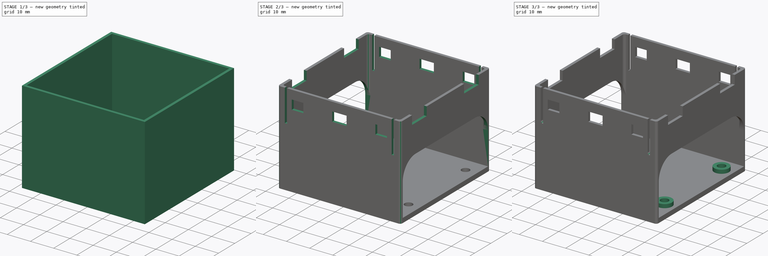
[diagram: build sequence overview — one tinted view per stage of 3, left to right]
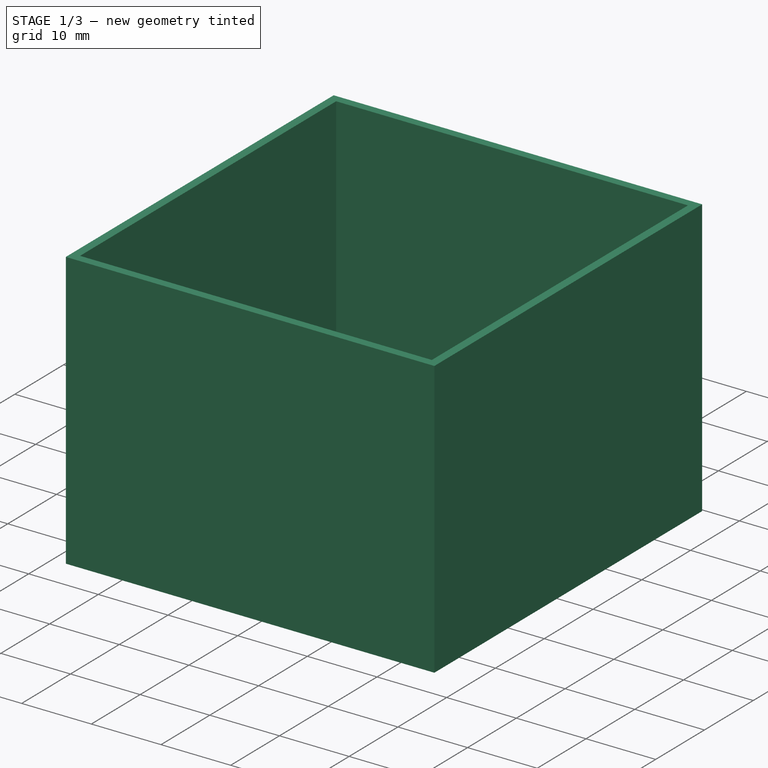
[diagram: stage 1 of 3 — iso view after this stage's code; geometry added in this stage tinted green]
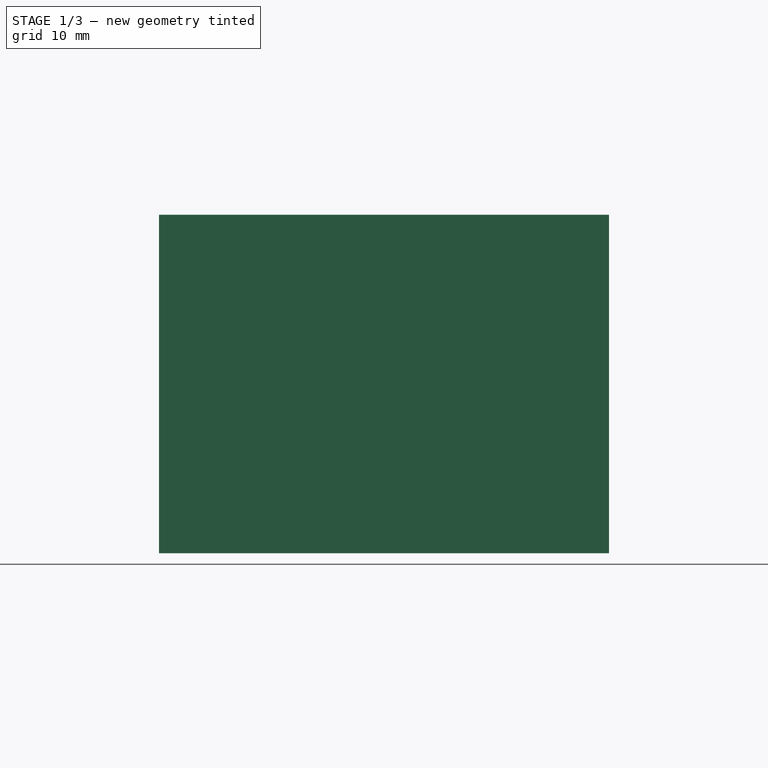
[diagram: stage 1 of 3 — front view after this stage's code; geometry added in this stage tinted green]
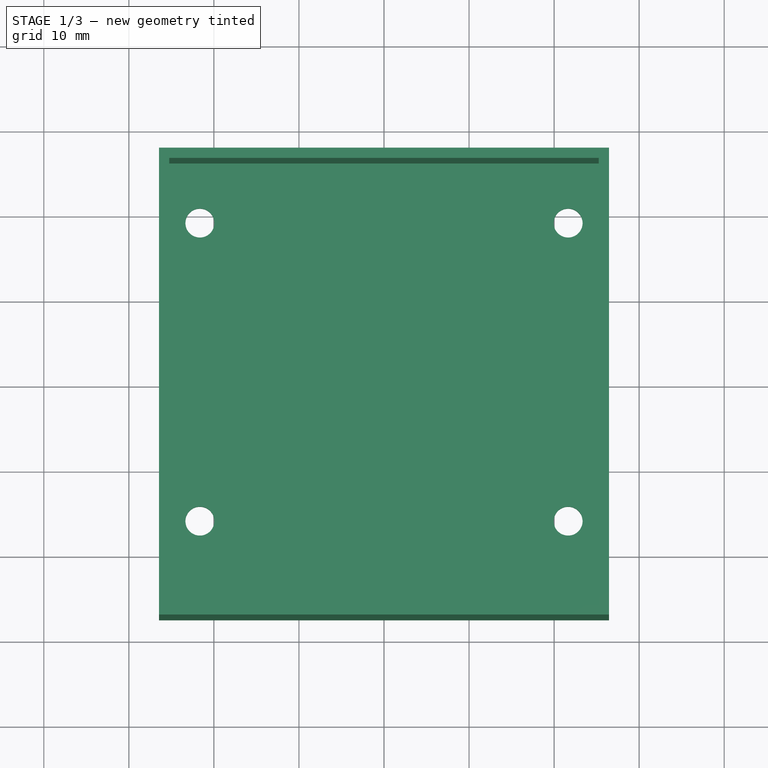
[diagram: stage 1 of 3 — top view after this stage's code; geometry added in this stage tinted green]
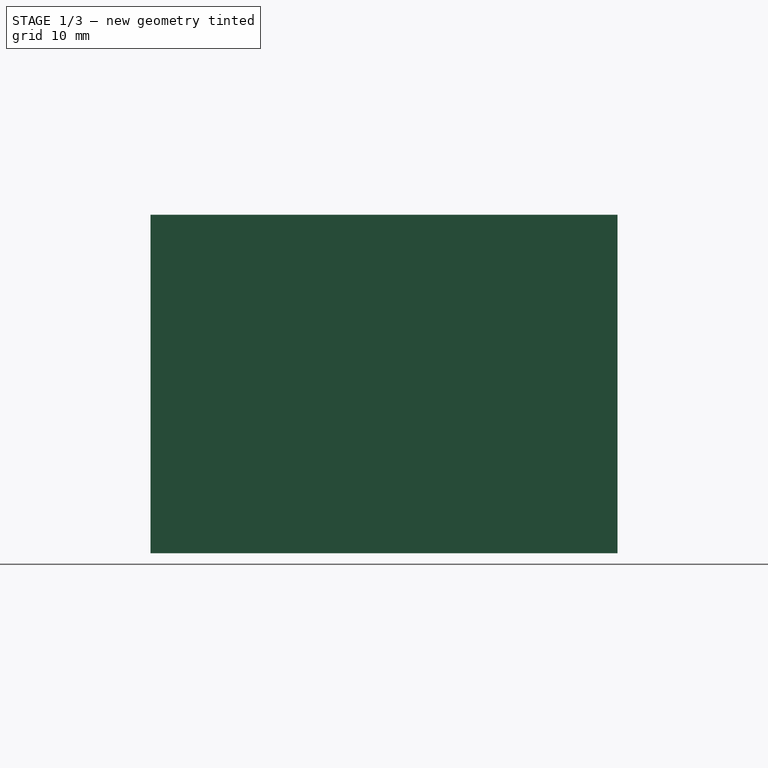
[diagram: stage 1 of 3 — right view after this stage's code; geometry added in this stage tinted green]
FCSTD DOCUMENT  (FreeCAD 0.19R24276 (Git))
Label: Powerstrip
License: All rights reserved
LicenseURL: http://en.wikipedia.org/wiki/All_rights_reserved
objects: Sketcher::SketchObject×8, PartDesign::Pad×3, PartDesign::Fillet×2, PartDesign::Pocket×2, Spreadsheet::Sheet×1, PartDesign::Body×1, App::Part×1
note: 23 computed .brp shape members not serialized (recipe doc carries the construction recipe); baked Part::Feature solids carry a one-line shape summary decoded from their .brp

FEATURE [Sketcher::SketchObject] Sketch  label="SB_Template_top"
  FullyConstrained = true
  MapMode = 5
  Support = -> [XY_Plane001]
  expr: Constraints[44] = <<Params>>.YOffset
  expr: Constraints[43] = <<Params>>.XOffset
  expr: Constraints[26] = <<Params>>.InternalLength
  expr: Constraints[25] = <<Params>>.InternalWidth
  expr: Constraints[39] = <<Params>>.WallThickness
  sketch-geometry (41):
    g0: LineSegment StartX=-26.45 StartY=27.45 StartZ=0 EndX=26.45 EndY=27.45 EndZ=0
    g1: LineSegment StartX=26.45 StartY=27.45 StartZ=0 EndX=26.45 EndY=-27.45 EndZ=0
    g2: LineSegment StartX=26.45 StartY=-27.45 StartZ=0 EndX=-26.45 EndY=-27.45 EndZ=0
    g3: LineSegment StartX=-26.45 StartY=-27.45 StartZ=0 EndX=-26.45 EndY=27.45 EndZ=0
    g4: LineSegment StartX=-25.25 StartY=26.25 StartZ=0 EndX=25.25 EndY=26.25 EndZ=0
    g5: LineSegment StartX=25.25 StartY=26.25 StartZ=0 EndX=25.25 EndY=-26.25 EndZ=0
    g6: LineSegment StartX=25.25 StartY=-26.25 StartZ=0 EndX=-25.25 EndY=-26.25 EndZ=0
    g7: LineSegment StartX=-25.25 StartY=-26.25 StartZ=0 EndX=-25.25 EndY=26.25 EndZ=0
    g8: GeomPoint X=0 Y=0 Z=0
    g9: LineSegment StartX=0 StartY=27.45 StartZ=0 EndX=0 EndY=-27.45 EndZ=0
    g10: LineSegment StartX=-26.45 StartY=0 StartZ=0 EndX=26.45 EndY=0 EndZ=0
    g11: LineSegment StartX=-25.25 StartY=26.25 StartZ=0 EndX=-25.25 EndY=27.45 EndZ=0
    g12: LineSegment StartX=25.25 StartY=26.25 StartZ=0 EndX=26.45 EndY=26.25 EndZ=0
    g13: LineSegment StartX=25.25 StartY=-26.25 StartZ=0 EndX=25.25 EndY=-27.45 EndZ=0
    g14: LineSegment StartX=-25.25 StartY=-26.25 StartZ=0 EndX=-26.45 EndY=-26.25 EndZ=0
    g15: LineSegment StartX=-28 StartY=27.45 StartZ=0 EndX=-28 EndY=-27.45 EndZ=0
    g16: LineSegment StartX=28 StartY=27.45 StartZ=0 EndX=28 EndY=-27.45 EndZ=0
    g17: LineSegment StartX=-36.89 StartY=21.9075 StartZ=0 EndX=-19.11 EndY=21.9075 EndZ=0
    g18: LineSegment StartX=-19.11 StartY=21.9075 StartZ=0 EndX=-19.11 EndY=-21.9075 EndZ=0
    g19: LineSegment StartX=-19.11 StartY=-21.9075 StartZ=0 EndX=-36.89 EndY=-21.9075 EndZ=0
    g20: LineSegment StartX=-36.89 StartY=-21.9075 StartZ=0 EndX=-36.89 EndY=21.9075 EndZ=0
    g21: LineSegment StartX=19.11 StartY=21.9075 StartZ=0 EndX=36.89 EndY=21.9075 EndZ=0
    g22: LineSegment StartX=36.89 StartY=21.9075 StartZ=0 EndX=36.89 EndY=-21.9075 EndZ=0
    g23: LineSegment StartX=36.89 StartY=-21.9075 StartZ=0 EndX=19.11 EndY=-21.9075 EndZ=0
    g24: LineSegment StartX=19.11 StartY=-21.9075 StartZ=0 EndX=19.11 EndY=21.9075 EndZ=0
    g25: Circle CenterX=-34.35 CenterY=19.2405 CenterZ=0 NormalX=0 NormalY=0 NormalZ=1 AngleXU=0 Radius=1.7
    g26: Circle CenterX=-21.65 CenterY=19.2405 CenterZ=0 NormalX=0 NormalY=0 NormalZ=1 AngleXU=0 Radius=1.7
    g27: Circle CenterX=-34.35 CenterY=-15.8115 CenterZ=0 NormalX=0 NormalY=0 NormalZ=1 AngleXU=0 Radius=1.7
    g28: Circle CenterX=-21.65 CenterY=-15.8115 CenterZ=0 NormalX=0 NormalY=0 NormalZ=1 AngleXU=0 Radius=1.7
    g29: Circle CenterX=21.65 CenterY=-15.8115 CenterZ=0 NormalX=0 NormalY=0 NormalZ=1 AngleXU=0 Radius=1.7
    g30: Circle CenterX=34.35 CenterY=-15.8115 CenterZ=0 NormalX=0 NormalY=0 NormalZ=1 AngleXU=0 Radius=1.7
    g31: Circle CenterX=21.65 CenterY=19.2405 CenterZ=0 NormalX=0 NormalY=0 NormalZ=1 AngleXU=0 Radius=1.7
    g32: Circle CenterX=34.35 CenterY=19.2405 CenterZ=0 NormalX=0 NormalY=0 NormalZ=1 AngleXU=0 Radius=1.7
    g33: LineSegment StartX=-34.35 StartY=19.2405 StartZ=0 EndX=-21.65 EndY=19.2405 EndZ=0
    g34: LineSegment StartX=-21.65 StartY=19.2405 StartZ=0 EndX=-21.65 EndY=-15.8115 EndZ=0
    g35: LineSegment StartX=-21.65 StartY=-15.8115 StartZ=0 EndX=-34.35 EndY=-15.8115 EndZ=0
    g36: LineSegment StartX=-34.35 StartY=-15.8115 StartZ=0 EndX=-34.35 EndY=19.2405 EndZ=0
    g37: LineSegment StartX=21.65 StartY=19.2405 StartZ=0 EndX=34.35 EndY=19.2405 EndZ=0
    g38: LineSegment StartX=34.35 StartY=19.2405 StartZ=0 EndX=34.35 EndY=-15.8115 EndZ=0
    g39: LineSegment StartX=34.35 StartY=-15.8115 StartZ=0 EndX=21.65 EndY=-15.8115 EndZ=0
    g40: LineSegment StartX=21.65 StartY=-15.8115 StartZ=0 EndX=21.65 EndY=19.2405 EndZ=0
  constraints (112):
    c: Coincident(g0,g1)
    c: Coincident(g1,g2)
    c: Coincident(g2,g3)
    c: Coincident(g3,g0)
    c: Horizontal(g0)
    c: Horizontal(g2)
    c: Vertical(g1)
    c: Vertical(g3)
    c: Coincident(g4,g5)
    c: Coincident(g5,g6)
    c: Coincident(g6,g7)
    c: Coincident(g7,g4)
    c: Horizontal(g4)
    c: Horizontal(g6)
    c: Vertical(g5)
    c: Vertical(g7)
    c: Symmetric(g6,g4,g8)
    c: PointOnObject(g9,g0)
    c: PointOnObject(g9,g2)
    c: Vertical(g9)
    c: PointOnObject(g10,g3)
    c: PointOnObject(g10,g1)
    c: Horizontal(g10)
    c: PointOnObject(g8,g10)
    c: PointOnObject(g8,g9)
    c: DistanceX(g4,g4) = 50.5
    c: DistanceY(g7,g7) = 52.5
    c: Coincident(g11,g4)
    c: PointOnObject(g11,g0)
    c: Vertical(g11)
    c: Coincident(g12,g4)
    c: PointOnObject(g12,g1)
    c: Horizontal(g12)
    c: Coincident(g13,g5)
    c: PointOnObject(g13,g2)
    c: Vertical(g13)
    c: Coincident(g14,g6)
    c: PointOnObject(g14,g3)
    c: Horizontal(g14)
    c: DistanceX(g12,g12) = 1.2
    c: Equal(g11,g12)
    c: Equal(g12,g13)
    c: Equal(g13,g14)
    c: DistanceX(g-1,g9) = 0
    c: DistanceY(g-1,g10) = 0
    c: DistanceX(g0,g0) = 52.9
    c: Vertical(g15)
    c: Vertical(g16)
    c: PointOnObject(g15,g0)
    c: PointOnObject(g15,g2)
    c: PointOnObject(g16,g2)
    c: Symmetric(g15,g16,g9)
    c: DistanceX(g15,g16) = 56
    c: Coincident(g17,g18)
    c: Coincident(g18,g19)
    c: Coincident(g19,g20)
    c: Coincident(g20,g17)
    c: Horizontal(g19)
    c: Vertical(g20)
    c: Symmetric(g17,g17,g15)
    c: DistanceX(g17,g17) = 17.78
    c: DistanceY(g20,g20) = 43.815
    c: Symmetric(g17,g18,g10)
    c: Coincident(g21,g22)
    c: Coincident(g22,g23)
    c: Coincident(g23,g24)
    c: Coincident(g24,g21)
    c: Horizontal(g23)
    c: Vertical(g22)
    c: Equal(g24,g18)
    c: Equal(g21,g17)
    c: Symmetric(g21,g21,g16)
    c: Symmetric(g21,g23,g10)
    c: Equal(g25,g26)
    c: Equal(g26,g27)
    c: Equal(g27,g28)
    c: Equal(g28,g29)
    c: Equal(g29,g30)
    c: Equal(g30,g31)
    c: Equal(g31,g32)
    c: Radius(g25) = 1.7
    c: Coincident(g33,g34)
    c: Coincident(g34,g35)
    c: Coincident(g35,g36)
    c: Coincident(g36,g33)
    c: Horizontal(g35)
    c: Vertical(g34)
    c: Vertical(g36)
    c: Coincident(g33,g25)
    c: Coincident(g34,g28)
    c: Coincident(g37,g38)
    c: Coincident(g38,g39)
    c: Coincident(g39,g40)
    c: Coincident(g40,g37)
    c: Horizontal(g39)
    c: Vertical(g38)
    c: Vertical(g40)
    c: Coincident(g37,g31)
    c: Coincident(g38,g30)
    c: Coincident(g32,g37)
    c: Coincident(g29,g39)
    c: Coincident(g27,g35)
    c: Coincident(g26,g33)
    c: Symmetric(g25,g26,g15)
    c: Symmetric(g31,g32,g16)
    c: DistanceX(g33,g33) = 12.7
    c: DistanceY(g36,g36) = 35.052
    c: DistanceY(g19,g27) = 6.096
    c: PointOnObject(g31,g33)
    c: Equal(g37,g33)
    c: Equal(g40,g34)
    c: DistanceY(g15,g15) = 54.9
FEATURE [Sketcher::SketchObject] Sketch001  label="SB_Base"
  ExternalGeometry = -> [Sketch]
  FullyConstrained = true
  MapMode = 5
  Support = -> [XY_Plane001]
  expr: .AttachmentOffset.Base.z = <<Params>>.ZOffset
  sketch-geometry (8):
    g0: LineSegment StartX=-26.45 StartY=27.45 StartZ=0 EndX=26.45 EndY=27.45 EndZ=0
    g1: LineSegment StartX=26.45 StartY=27.45 StartZ=0 EndX=26.45 EndY=-27.45 EndZ=0
    g2: LineSegment StartX=26.45 StartY=-27.45 StartZ=0 EndX=-26.45 EndY=-27.45 EndZ=0
    g3: LineSegment StartX=-26.45 StartY=-27.45 StartZ=0 EndX=-26.45 EndY=27.45 EndZ=0
    g4: Circle CenterX=-21.65 CenterY=19.2405 CenterZ=0 NormalX=0 NormalY=0 NormalZ=1 AngleXU=0 Radius=1.7
    g5: Circle CenterX=21.65 CenterY=19.2405 CenterZ=0 NormalX=0 NormalY=0 NormalZ=1 AngleXU=0 Radius=1.7
    g6: Circle CenterX=21.65 CenterY=-15.8115 CenterZ=0 NormalX=0 NormalY=0 NormalZ=1 AngleXU=0 Radius=1.7
    g7: Circle CenterX=-21.65 CenterY=-15.8115 CenterZ=0 NormalX=0 NormalY=0 NormalZ=1 AngleXU=0 Radius=1.7
  constraints (18):
    c: Coincident(g0,g1)
    c: Coincident(g1,g2)
    c: Coincident(g2,g3)
    c: Coincident(g3,g0)
    c: Horizontal(g0)
    c: Horizontal(g2)
    c: Vertical(g1)
    c: Vertical(g3)
    c: Coincident(g0,g-3)
    c: Coincident(g1,g-4)
    c: Equal(g-6,g7)
    c: Equal(g4,g-5)
    c: Equal(g-8,g5)
    c: Equal(g-7,g6)
    c: Coincident(g6,g-7)
    c: Coincident(g5,g-8)
    c: Coincident(g-5,g4)
    c: Coincident(g-6,g7)
FEATURE [PartDesign::Pad] Pad  label="SB_Base_"
  Direction = (1,1,1)
  Length = 2
  Length2 = 100
  Profile = -> Sketch001
  Type = 0
  expr: Length = <<Params>>.BottomThickness
FEATURE [Sketcher::SketchObject] Sketch002  label="SB_Walls"
  AttachmentOffset = pos=(0,0,2) rot=(0,0,1;0rad)
  ExternalGeometry = -> [Sketch]
  FullyConstrained = true
  MapMode = 5
  Placement = pos=(0,0,2) rot=(0,0,1;0rad)
  Support = -> [XY_Plane001]
  expr: .AttachmentOffset.Base.z = <<SB_Base>>.AttachmentOffset.Base.z + <<SB_Base_>>.Length
  sketch-geometry (8):
    g0: LineSegment StartX=-26.45 StartY=27.45 StartZ=0 EndX=26.45 EndY=27.45 EndZ=0
    g1: LineSegment StartX=26.45 StartY=27.45 StartZ=0 EndX=26.45 EndY=-27.45 EndZ=0
    g2: LineSegment StartX=26.45 StartY=-27.45 StartZ=0 EndX=-26.45 EndY=-27.45 EndZ=0
    g3: LineSegment StartX=-26.45 StartY=-27.45 StartZ=0 EndX=-26.45 EndY=27.45 EndZ=0
    g4: LineSegment StartX=25.25 StartY=-26.25 StartZ=0 EndX=-25.25 EndY=-26.25 EndZ=0
    g5: LineSegment StartX=-25.25 StartY=-26.25 StartZ=0 EndX=-25.25 EndY=26.25 EndZ=0
    g6: LineSegment StartX=-25.25 StartY=26.25 StartZ=0 EndX=25.25 EndY=26.25 EndZ=0
    g7: LineSegment StartX=25.25 StartY=26.25 StartZ=0 EndX=25.25 EndY=-26.25 EndZ=0
  constraints (20):
    c: Coincident(g0,g1)
    c: Coincident(g1,g2)
    c: Coincident(g2,g3)
    c: Coincident(g3,g0)
    c: Horizontal(g0)
    c: Horizontal(g2)
    c: Vertical(g1)
    c: Vertical(g3)
    c: Coincident(g0,g-3)
    c: Coincident(g1,g-5)
    c: Coincident(g4,g5)
    c: Coincident(g5,g6)
    c: Coincident(g6,g7)
    c: Coincident(g7,g4)
    c: Horizontal(g4)
    c: Horizontal(g6)
    c: Vertical(g5)
    c: Vertical(g7)
    c: Coincident(g4,g-4)
    c: Coincident(g5,g-6)
FEATURE [PartDesign::Pad] Pad001  label="SB_Walls_"
  BaseFeature = -> Pad
  Direction = (1,1,1)
  Length = 37.8
  Length2 = 100
  Profile = -> Sketch002
  Refine = true
  Type = 0
  expr: Length = Spreadsheet.TotalWallHeight
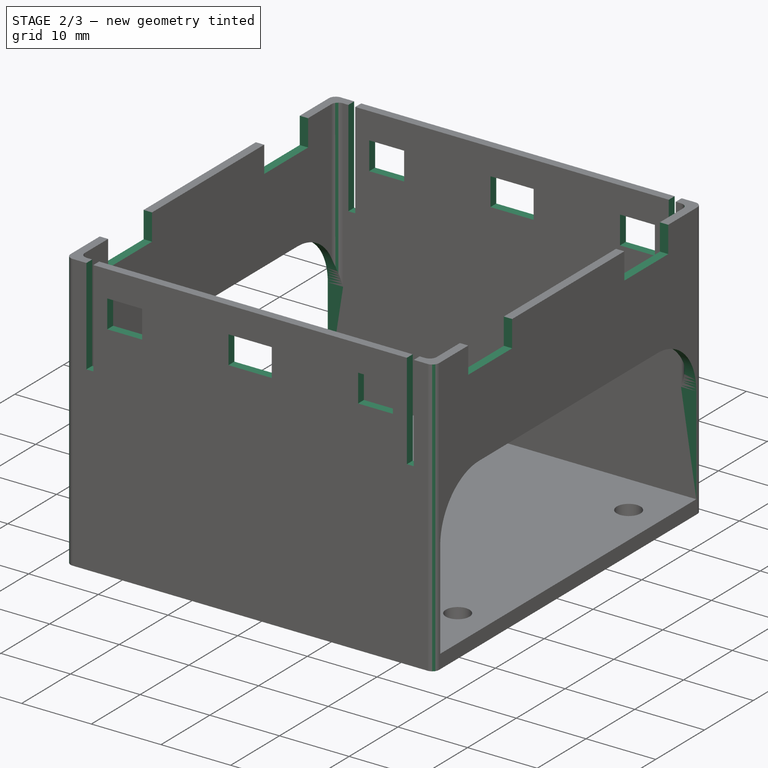
[diagram: stage 2 of 3 — iso view after this stage's code; geometry added in this stage tinted green]
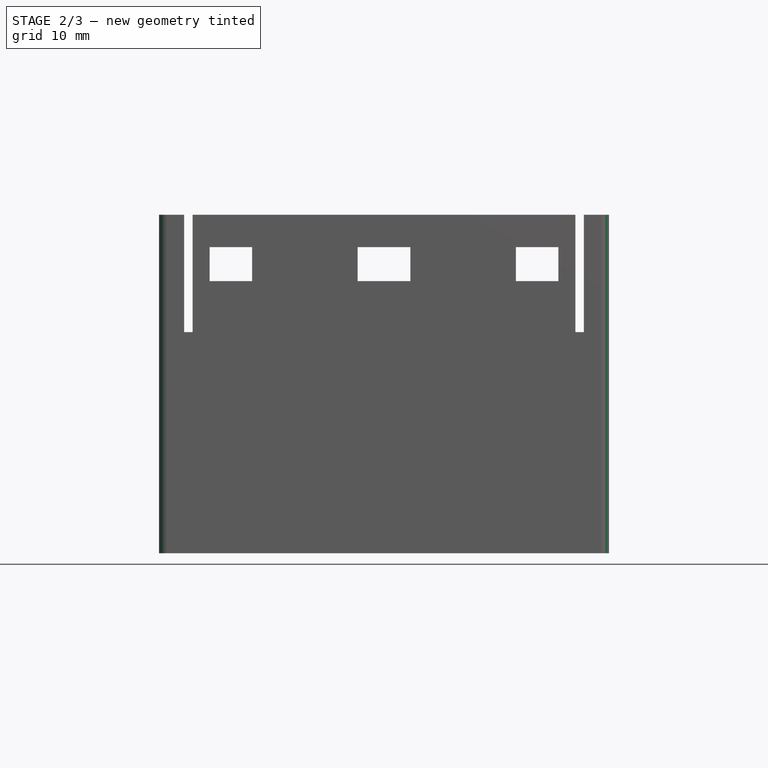
[diagram: stage 2 of 3 — front view after this stage's code; geometry added in this stage tinted green]
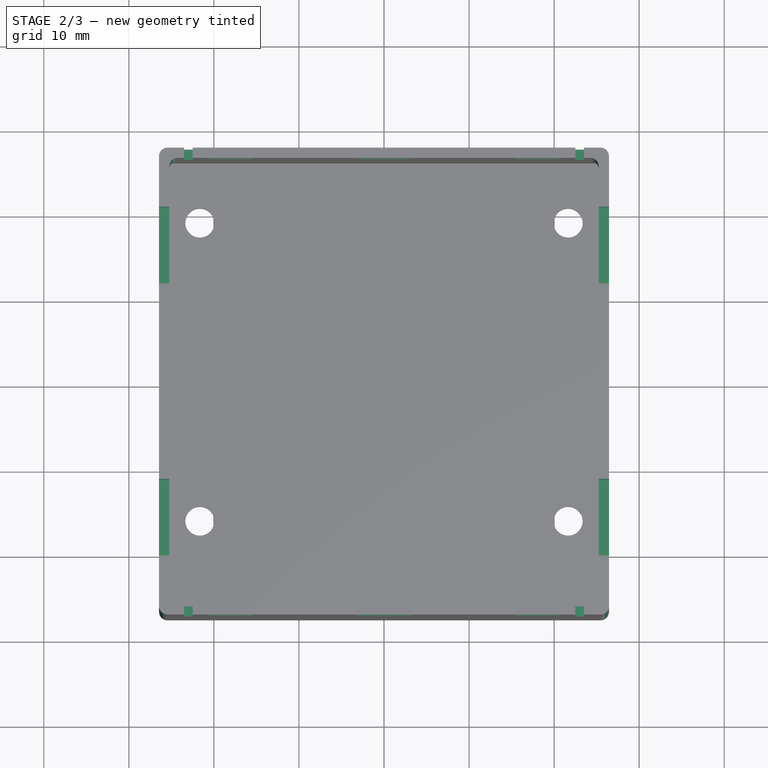
[diagram: stage 2 of 3 — top view after this stage's code; geometry added in this stage tinted green]
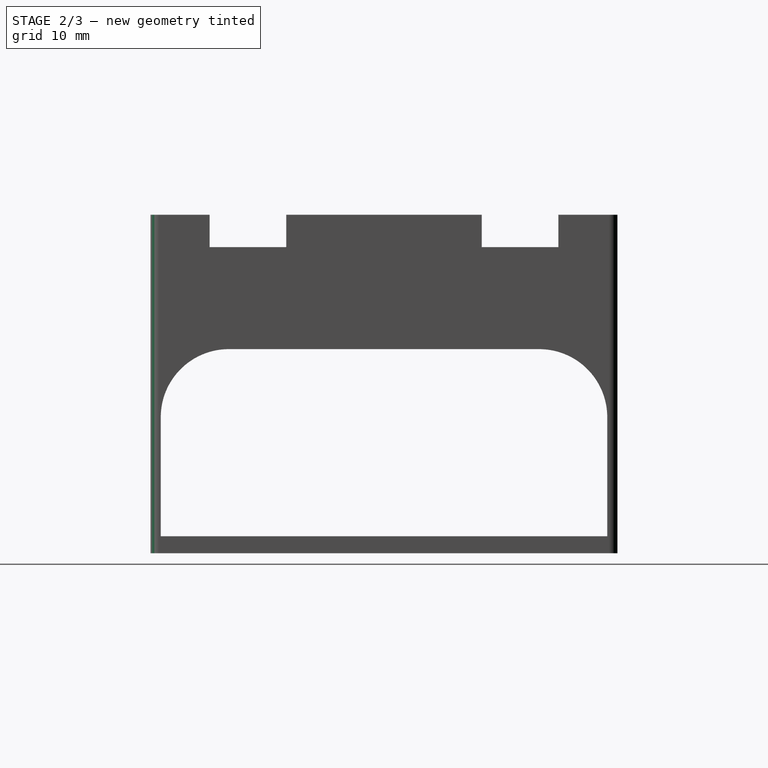
[diagram: stage 2 of 3 — right view after this stage's code; geometry added in this stage tinted green]
FEATURE [Sketcher::SketchObject] Sketch007  label="SB_Template_front"
  ExternalGeometry = -> [Sketch]
  FullyConstrained = true
  MapMode = 5
  Placement = pos=(0,0,0) rot=(1,0,0;1.5708rad)
  Support = -> [XZ_Plane001]
  expr: Constraints[67] = <<Params>>.SideOverlap
  expr: Constraints[61] = <<Params>>.LockGap
  expr: Constraints[23] = <<Params>>.TotalHeight
  expr: Constraints[63] = <<Params>>.AboveLock
  expr: Constraints[45] = <<Params>>.LockShoulder
  expr: Constraints[52] = <<Params>>.LockHoleHeight
  expr: Constraints[22] = <<Params>>.ZOffset
  expr: Constraints[29] = <<Params>>.BaseHeight
  expr: Constraints[21] = <<Params>>.BottomThickness
  sketch-geometry (22):
    g0: LineSegment StartX=-26.45 StartY=39.8 StartZ=0 EndX=26.45 EndY=39.8 EndZ=0
    g1: LineSegment StartX=26.45 StartY=39.8 StartZ=0 EndX=26.45 EndY=0 EndZ=0
    g2: LineSegment StartX=26.45 StartY=0 StartZ=0 EndX=-26.45 EndY=0 EndZ=0
    g3: LineSegment StartX=-26.45 StartY=0 StartZ=0 EndX=-26.45 EndY=39.8 EndZ=0
    g4: LineSegment StartX=-25.25 StartY=39.8 StartZ=0 EndX=-25.25 EndY=0 EndZ=0
    g5: LineSegment StartX=25.25 StartY=39.8 StartZ=0 EndX=25.25 EndY=0 EndZ=0
    g6: LineSegment StartX=-26.45 StartY=2 StartZ=0 EndX=26.45 EndY=2 EndZ=0
    g7: LineSegment StartX=0 StartY=0 StartZ=0 EndX=0 EndY=39.8 EndZ=0
    g8: LineSegment StartX=-3.1 StartY=39.8 StartZ=0 EndX=-3.1 EndY=26 EndZ=0
    g9: LineSegment StartX=-25.25 StartY=24 StartZ=0 EndX=25.25 EndY=24 EndZ=0
    g10: LineSegment StartX=-15.5 StartY=39.8 StartZ=0 EndX=-15.5 EndY=26 EndZ=0
    g11: LineSegment StartX=-20.5 StartY=39.8 StartZ=0 EndX=-20.5 EndY=26 EndZ=0
    g12: LineSegment StartX=-22.5 StartY=39.8 StartZ=0 EndX=-22.5 EndY=26 EndZ=0
    g13: LineSegment StartX=-23.5 StartY=39.8 StartZ=0 EndX=-23.5 EndY=26 EndZ=0
    g14: LineSegment StartX=3.1 StartY=39.8 StartZ=0 EndX=3.1 EndY=26 EndZ=0
    g15: LineSegment StartX=15.5 StartY=39.8 StartZ=0 EndX=15.5 EndY=26 EndZ=0
    g16: LineSegment StartX=20.5 StartY=39.8 StartZ=0 EndX=20.5 EndY=26 EndZ=0
    g17: LineSegment StartX=22.5 StartY=39.8 StartZ=0 EndX=22.5 EndY=26 EndZ=0
    g18: LineSegment StartX=23.5 StartY=39.8 StartZ=0 EndX=23.5 EndY=26 EndZ=0
    g19: LineSegment StartX=-25.25 StartY=36 StartZ=0 EndX=25.25 EndY=36 EndZ=0
    g20: LineSegment StartX=-25.25 StartY=32 StartZ=0 EndX=25.25 EndY=32 EndZ=0
    g21: LineSegment StartX=-26.45 StartY=26 StartZ=0 EndX=26.45 EndY=26 EndZ=0
  constraints (78):
    c: Coincident(g0,g1)
    c: Coincident(g1,g2)
    c: Coincident(g2,g3)
    c: Coincident(g3,g0)
    c: Horizontal(g0)
    c: Horizontal(g2)
    c: Vertical(g1)
    c: Vertical(g3)
    c: PointOnObject(g-4,g1)
    c: PointOnObject(g-3,g3)
    c: PointOnObject(g4,g0)
    c: PointOnObject(g4,g2)
    c: Vertical(g4)
    c: PointOnObject(g5,g0)
    c: PointOnObject(g5,g2)
    c: Vertical(g5)
    c: PointOnObject(g6,g3)
    c: PointOnObject(g6,g1)
    c: Horizontal(g6)
    c: PointOnObject(g-5,g4)
    c: PointOnObject(g-6,g5)
    c: DistanceY(g2,g6) = 2
    c: DistanceY(g-3,g2) = 0
    c: DistanceY(g2,g0) = 39.8
    c: PointOnObject(g7,g2)
    c: Vertical(g8)
    c: PointOnObject(g9,g4)
    c: PointOnObject(g9,g5)
    c: Horizontal(g9)
    c: DistanceY(g6,g9) = 22
    c: Vertical(g10)
    c: PointOnObject(g11,g0)
    c: Vertical(g11)
    c: PointOnObject(g12,g0)
    c: Vertical(g12)
    c: PointOnObject(g13,g0)
    c: Vertical(g13)
    c: Vertical(g14)
    c: DistanceX(g8,g14) = 6.2
    c: Vertical(g15)
    c: Vertical(g16)
    c: Vertical(g17)
    c: Vertical(g18)
    c: DistanceX(g10,g15) = 31
    c: DistanceX(g11,g16) = 41
    c: DistanceX(g12,g11) = 2
    c: PointOnObject(g19,g4)
    c: PointOnObject(g19,g5)
    c: Horizontal(g19)
    c: PointOnObject(g20,g4)
    c: PointOnObject(g20,g5)
    c: Horizontal(g20)
    c: DistanceY(g20,g19) = 4
    c: PointOnObject(g15,g0)
    c: PointOnObject(g7,g0)
    c: Symmetric(g0,g0,g7)
    c: Symmetric(g11,g16,g7)
    c: Symmetric(g12,g17,g7)
    c: Symmetric(g8,g14,g7)
    c: Symmetric(g10,g15,g7)
    c: Symmetric(g13,g18,g7)
    c: DistanceX(g13,g12) = 1
    c: PointOnObject(g8,g0)
    c: DistanceY(g19,g0) = 3.8
    c: PointOnObject(g21,g3)
    c: PointOnObject(g21,g1)
    c: Horizontal(g21)
    c: DistanceY(g9,g21) = 2
    c: PointOnObject(g13,g21)
    c: PointOnObject(g12,g21)
    c: PointOnObject(g11,g21)
    c: PointOnObject(g10,g21)
    c: PointOnObject(g8,g21)
    c: PointOnObject(g14,g21)
    c: PointOnObject(g15,g21)
    c: PointOnObject(g16,g21)
    c: PointOnObject(g17,g21)
    c: PointOnObject(g18,g21)
FEATURE [Spreadsheet::Sheet] Spreadsheet  label="Params"
  cells = B3=XOffset; C3(XOffset)==0mm; B4=YOffset; C4(YOffset)==0mm; B5=ZOffset; C5(ZOffset)==0mm; B6=InternalWidth; C6(InternalWidth)==50.5mm; B7=InternalLength; C7(InternalLength)==52.5mm; B8=BottomThickness; C8(BottomThickness)==2mm; B9=WallThickness; C9(WallThickness)==1.2mm; B10=BaseHeight; C10(BaseHeight)==22mm; B11=SideOverlap; C11(SideOverlap)==2mm; B12=LockHoleHeight; C12(LockHoleHeight)==4mm; B13=LockTopFromBase; C13(LockTopFromBase)==12mm; B14=LockGap; C14(LockGap)==1mm; B15=LockShoulder; C15(LockShoulder)==2mm; B16=AboveLock; C16(AboveLock)==3.8mm; B17=TotalWallHeight; C17(TotalWallHeight)==BaseHeight + LockTopFromBase + AboveLock; B18=TotalHeight; C18(TotalHeight)==TotalWallHeight + BottomThickness
FEATURE [Sketcher::SketchObject] Sketch008  label="SB_Template_right"
  ExternalGeometry = -> [Sketch,Sketch007]
  FullyConstrained = true
  MapMode = 5
  Placement = pos=(0,0,0) rot=(0.57735,0.57735,0.57735;2.0944rad)
  Support = -> [YZ_Plane001]
  sketch-geometry (14):
    g0: LineSegment StartX=-27.45 StartY=39.8 StartZ=0 EndX=27.45 EndY=39.8 EndZ=0
    g1: LineSegment StartX=27.45 StartY=39.8 StartZ=0 EndX=27.45 EndY=0 EndZ=0
    g2: LineSegment StartX=27.45 StartY=0 StartZ=0 EndX=-27.45 EndY=0 EndZ=0
    g3: LineSegment StartX=-27.45 StartY=0 StartZ=0 EndX=-27.45 EndY=39.8 EndZ=0
    g4: LineSegment StartX=-26.25 StartY=39.8 StartZ=0 EndX=-26.25 EndY=2 EndZ=0
    g5: LineSegment StartX=26.25 StartY=39.8 StartZ=0 EndX=26.25 EndY=2 EndZ=0
    g6: LineSegment StartX=-26.25 StartY=2 StartZ=0 EndX=26.25 EndY=2 EndZ=0
    g7: LineSegment StartX=-26.25 StartY=36 StartZ=0 EndX=26.25 EndY=36 EndZ=0
    g8: LineSegment StartX=1.1e-15 StartY=39.8 StartZ=0 EndX=1.1e-15 EndY=0 EndZ=0
    g9: LineSegment StartX=-20.5 StartY=39.8 StartZ=0 EndX=-20.5 EndY=36 EndZ=0
    g10: LineSegment StartX=-11.5 StartY=39.8 StartZ=0 EndX=-11.5 EndY=36 EndZ=0
    g11: LineSegment StartX=20.5 StartY=39.8 StartZ=0 EndX=20.5 EndY=36 EndZ=0
    g12: LineSegment StartX=11.5 StartY=39.8 StartZ=0 EndX=11.5 EndY=36 EndZ=0
    g13: LineSegment StartX=-26.25 StartY=24 StartZ=0 EndX=26.25 EndY=24 EndZ=0
  constraints (49):
    c: Coincident(g0,g1)
    c: Coincident(g1,g2)
    c: Coincident(g2,g3)
    c: Coincident(g3,g0)
    c: Horizontal(g0)
    c: Horizontal(g2)
    c: Vertical(g1)
    c: Vertical(g3)
    c: PointOnObject(g4,g0)
    c: Vertical(g4)
    c: PointOnObject(g5,g0)
    c: Vertical(g5)
    c: Horizontal(g6)
    c: PointOnObject(g7,g4)
    c: PointOnObject(g7,g5)
    c: Horizontal(g7)
    c: PointOnObject(g8,g0)
    c: PointOnObject(g8,g2)
    c: Symmetric(g0,g0,g8)
    c: PointOnObject(g9,g0)
    c: PointOnObject(g9,g7)
    c: Vertical(g9)
    c: PointOnObject(g10,g0)
    c: PointOnObject(g10,g7)
    c: Vertical(g10)
    c: PointOnObject(g11,g7)
    c: Vertical(g11)
    c: PointOnObject(g12,g7)
    c: Vertical(g12)
    c: Symmetric(g9,g11,g8)
    c: Symmetric(g10,g12,g8)
    c: DistanceX(g9,g11) = 41
    c: DistanceX(g10,g12) = 23
    c: Horizontal(g13)
    c: PointOnObject(g13,g4)
    c: PointOnObject(g13,g5)
    c: Coincident(g4,g6)
    c: Coincident(g5,g6)
    c: DistanceX(g0,g0) = 54.9
    c: DistanceX(g4,g5) = 52.5
    c: PointOnObject(g-4,g4)
    c: PointOnObject(g-3,g3)
    c: PointOnObject(g-6,g1)
    c: PointOnObject(g-5,g5)
    c: PointOnObject(g-8,g2)
    c: PointOnObject(g-7,g6)
    c: PointOnObject(g-9,g0)
    c: PointOnObject(g-10,g7)
    c: PointOnObject(g-11,g13)
FEATURE [Sketcher::SketchObject] Sketch009  label="SB_LockHo;es"
  ExternalGeometry = -> [Sketch007]
  FullyConstrained = true
  MapMode = 5
  Placement = pos=(0,0,0) rot=(1,0,0;1.5708rad)
  Support = -> [XZ_Plane001]
  sketch-geometry (20):
    g0: LineSegment StartX=-3.1 StartY=36 StartZ=0 EndX=3.1 EndY=36 EndZ=0
    g1: LineSegment StartX=3.1 StartY=36 StartZ=0 EndX=3.1 EndY=32 EndZ=0
    g2: LineSegment StartX=3.1 StartY=32 StartZ=0 EndX=-3.1 EndY=32 EndZ=0
    g3: LineSegment StartX=-3.1 StartY=32 StartZ=0 EndX=-3.1 EndY=36 EndZ=0
    g4: LineSegment StartX=-20.5 StartY=36 StartZ=0 EndX=-15.5 EndY=36 EndZ=0
    g5: LineSegment StartX=-15.5 StartY=36 StartZ=0 EndX=-15.5 EndY=32 EndZ=0
    g6: LineSegment StartX=-15.5 StartY=32 StartZ=0 EndX=-20.5 EndY=32 EndZ=0
    g7: LineSegment StartX=-20.5 StartY=32 StartZ=0 EndX=-20.5 EndY=36 EndZ=0
    g8: LineSegment StartX=15.5 StartY=36 StartZ=0 EndX=20.5 EndY=36 EndZ=0
    g9: LineSegment StartX=20.5 StartY=36 StartZ=0 EndX=20.5 EndY=32 EndZ=0
    g10: LineSegment StartX=20.5 StartY=32 StartZ=0 EndX=15.5 EndY=32 EndZ=0
    g11: LineSegment StartX=15.5 StartY=32 StartZ=0 EndX=15.5 EndY=36 EndZ=0
    g12: LineSegment StartX=22.5 StartY=39.8 StartZ=0 EndX=23.5 EndY=39.8 EndZ=0
    g13: LineSegment StartX=23.5 StartY=39.8 StartZ=0 EndX=23.5 EndY=26 EndZ=0
    g14: LineSegment StartX=23.5 StartY=26 StartZ=0 EndX=22.5 EndY=26 EndZ=0
    g15: LineSegment StartX=22.5 StartY=26 StartZ=0 EndX=22.5 EndY=39.8 EndZ=0
    g16: LineSegment StartX=-23.5 StartY=39.8 StartZ=0 EndX=-22.5 EndY=39.8 EndZ=0
    g17: LineSegment StartX=-22.5 StartY=39.8 StartZ=0 EndX=-22.5 EndY=26 EndZ=0
    g18: LineSegment StartX=-22.5 StartY=26 StartZ=0 EndX=-23.5 EndY=26 EndZ=0
    g19: LineSegment StartX=-23.5 StartY=26 StartZ=0 EndX=-23.5 EndY=39.8 EndZ=0
  constraints (56):
    c: Coincident(g0,g1)
    c: Coincident(g1,g2)
    c: Coincident(g2,g3)
    c: Coincident(g3,g0)
    c: Horizontal(g0)
    c: Horizontal(g2)
    c: Vertical(g1)
    c: Vertical(g3)
    c: Coincident(g4,g5)
    c: Coincident(g5,g6)
    c: Coincident(g6,g7)
    c: Coincident(g7,g4)
    c: Horizontal(g4)
    c: Horizontal(g6)
    c: Vertical(g5)
    c: Vertical(g7)
    c: Coincident(g8,g9)
    c: Coincident(g9,g10)
    c: Coincident(g10,g11)
    c: Coincident(g11,g8)
    c: Horizontal(g8)
    c: Horizontal(g10)
    c: Vertical(g9)
    c: Vertical(g11)
    c: Coincident(g12,g13)
    c: Coincident(g13,g14)
    c: Coincident(g14,g15)
    c: Coincident(g15,g12)
    c: Horizontal(g12)
    c: Horizontal(g14)
    c: Vertical(g13)
    c: Vertical(g15)
    c: Coincident(g16,g17)
    c: Coincident(g17,g18)
    c: Coincident(g18,g19)
    c: Coincident(g19,g16)
    c: Horizontal(g16)
    c: Horizontal(g18)
    c: Vertical(g17)
    c: Vertical(g19)
    c: PointOnObject(g4,g-13)
    c: PointOnObject(g0,g-13)
    c: PointOnObject(g8,g-13)
    c: PointOnObject(g5,g-14)
    c: PointOnObject(g1,g-14)
    c: PointOnObject(g9,g-14)
    c: PointOnObject(g8,g-4)
    c: PointOnObject(g10,g-12)
    c: PointOnObject(g0,g-11)
    c: PointOnObject(g2,g-3)
    c: PointOnObject(g4,g-5)
    c: PointOnObject(g6,g-6)
    c: Coincident(g16,g-10)
    c: Coincident(g17,g-9)
    c: Coincident(g12,g-8)
    c: Coincident(g13,g-7)
FEATURE [Sketcher::SketchObject] Sketch010  label="SB_SideHoles"
  ExternalGeometry = -> [Sketch008]
  FullyConstrained = true
  MapMode = 5
  Placement = pos=(0,0,0) rot=(0.57735,0.57735,0.57735;2.0944rad)
  Support = -> [YZ_Plane001]
  sketch-geometry (14):
    g0: LineSegment StartX=-20.5 StartY=39.8 StartZ=0 EndX=-11.5 EndY=39.8 EndZ=0
    g1: LineSegment StartX=-11.5 StartY=39.8 StartZ=0 EndX=-11.5 EndY=36 EndZ=0
    g2: LineSegment StartX=-11.5 StartY=36 StartZ=0 EndX=-20.5 EndY=36 EndZ=0
    g3: LineSegment StartX=-20.5 StartY=36 StartZ=0 EndX=-20.5 EndY=39.8 EndZ=0
    g4: LineSegment StartX=11.5 StartY=39.8 StartZ=0 EndX=20.5 EndY=39.8 EndZ=0
    g5: LineSegment StartX=20.5 StartY=39.8 StartZ=0 EndX=20.5 EndY=36 EndZ=0
    g6: LineSegment StartX=20.5 StartY=36 StartZ=0 EndX=11.5 EndY=36 EndZ=0
    g7: LineSegment StartX=11.5 StartY=36 StartZ=0 EndX=11.5 EndY=39.8 EndZ=0
    g8: LineSegment StartX=-18.25 StartY=24 StartZ=0 EndX=18.25 EndY=24 EndZ=0
    g9: ArcOfCircle CenterX=-18.25 CenterY=16 CenterZ=0 NormalX=0 NormalY=0 NormalZ=1 AngleXU=0 Radius=8 StartAngle=1.5708 EndAngle=3.14159
    g10: ArcOfCircle CenterX=18.25 CenterY=16 CenterZ=0 NormalX=0 NormalY=0 NormalZ=1 AngleXU=0 Radius=8 StartAngle=4e-16 EndAngle=1.5708
    g11: LineSegment StartX=-26.25 StartY=16 StartZ=0 EndX=-26.25 EndY=2 EndZ=0
    g12: LineSegment StartX=-26.25 StartY=2 StartZ=0 EndX=26.25 EndY=2 EndZ=0
    g13: LineSegment StartX=26.25 StartY=2 StartZ=0 EndX=26.25 EndY=16 EndZ=0
  constraints (34):
    c: Coincident(g0,g1)
    c: Coincident(g1,g2)
    c: Coincident(g2,g3)
    c: Coincident(g3,g0)
    c: Horizontal(g0)
    c: Horizontal(g2)
    c: Vertical(g1)
    c: Vertical(g3)
    c: Coincident(g0,g-3)
    c: Coincident(g1,g-4)
    c: Coincident(g4,g5)
    c: Coincident(g5,g6)
    c: Coincident(g6,g7)
    c: Coincident(g7,g4)
    c: Horizontal(g4)
    c: Horizontal(g6)
    c: Vertical(g5)
    c: Vertical(g7)
    c: Coincident(g4,g-5)
    c: Coincident(g5,g-6)
    c: PointOnObject(g8,g-7)
    c: Tangent(g9,g-8) = -1.5708
    c: Tangent(g8,g9) = 1.5708
    c: Radius(g9) = 8
    c: Horizontal(g8)
    c: Tangent(g10,g-10) = 1.5708
    c: Tangent(g8,g10) = 1.5708
    c: Equal(g9,g10)
    c: Tangent(g9,g11) = -1.5708
    c: Coincident(g11,g12)
    c: Coincident(g12,g-10)
    c: Horizontal(g12)
    c: Coincident(g12,g13)
    c: Coincident(g13,g10)
FEATURE [PartDesign::Fillet] Fillet
  Base = -> Pad001 [Edge34,Edge33,Edge22,Edge35,Edge21,Edge32,Edge31,Edge36]
  BaseFeature = -> Pad001
  Radius = 1
  SupportTransform = false
FEATURE [PartDesign::Pocket] Pocket  label="SB_LockHo;es_"
  BaseFeature = -> Fillet
  Length = 5
  Length2 = 100
  Midplane = true
  Profile = -> Sketch009
  Type = 1
FEATURE [PartDesign::Pocket] Pocket001  label="SB_SideHoles_"
  BaseFeature = -> Pocket
  Length = 5
  Length2 = 100
  Midplane = true
  Profile = -> Sketch010
  Refine = true
  Type = 1
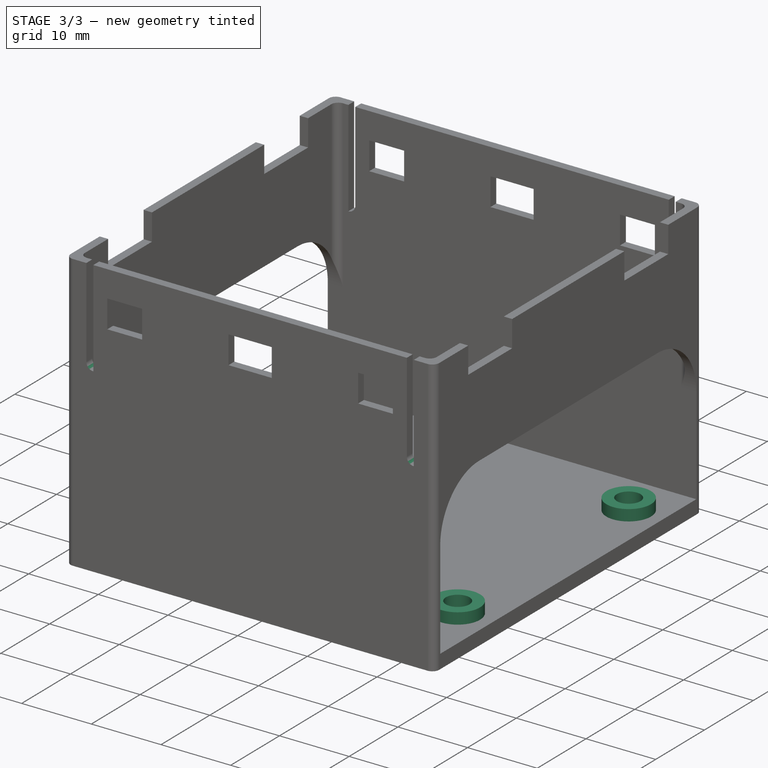
[diagram: stage 3 of 3 — iso view after this stage's code; geometry added in this stage tinted green]
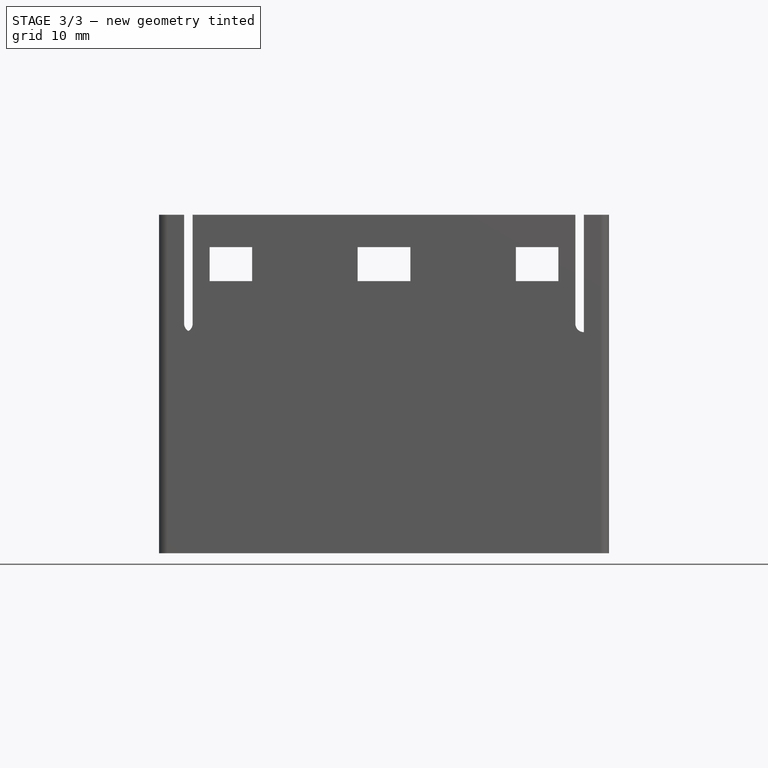
[diagram: stage 3 of 3 — front view after this stage's code; geometry added in this stage tinted green]
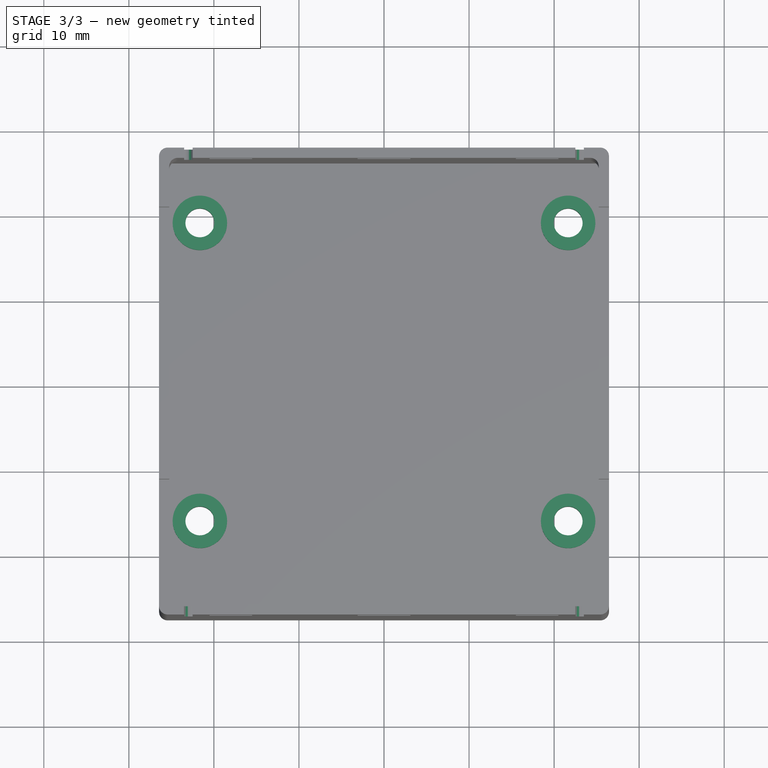
[diagram: stage 3 of 3 — top view after this stage's code; geometry added in this stage tinted green]
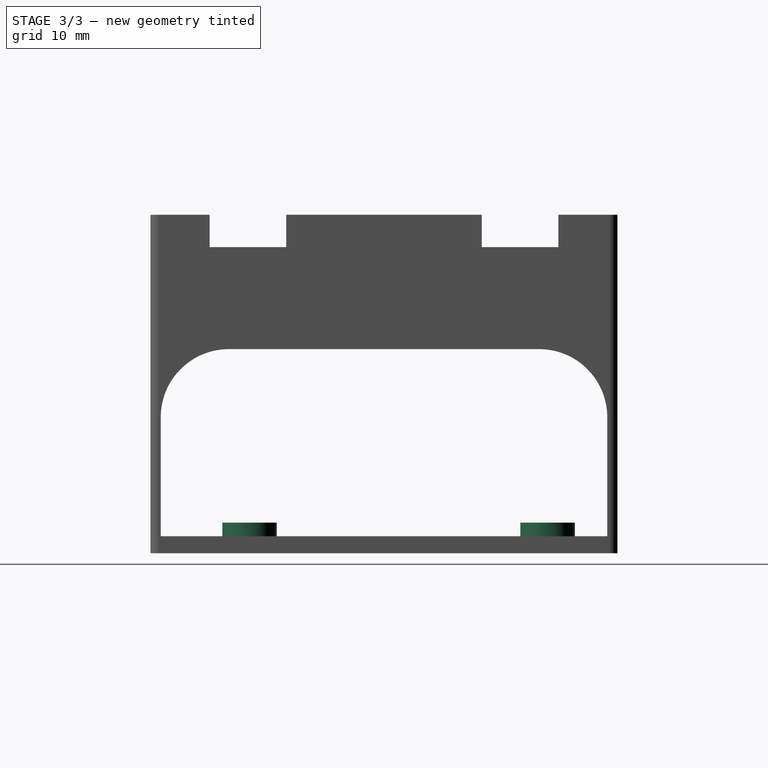
[diagram: stage 3 of 3 — right view after this stage's code; geometry added in this stage tinted green]
FEATURE [Sketcher::SketchObject] Sketch011  label="SB_PCBBumps"
  AttachmentOffset = pos=(0,0,2) rot=(0,0,1;0rad)
  ExternalGeometry = -> [Sketch]
  FullyConstrained = true
  MapMode = 5
  Placement = pos=(0,0,2) rot=(0,0,1;0rad)
  Support = -> [XY_Plane001]
  expr: .AttachmentOffset.Base.z = <<SB_Base>>.AttachmentOffset.Base.z + <<SB_Base_>>.Length
  sketch-geometry (8):
    g0: Circle CenterX=-21.65 CenterY=19.2405 CenterZ=0 NormalX=0 NormalY=0 NormalZ=1 AngleXU=0 Radius=3.2
    g1: Circle CenterX=21.65 CenterY=19.2405 CenterZ=0 NormalX=0 NormalY=0 NormalZ=1 AngleXU=0 Radius=3.2
    g2: Circle CenterX=21.65 CenterY=-15.8115 CenterZ=0 NormalX=0 NormalY=0 NormalZ=1 AngleXU=0 Radius=3.2
    g3: Circle CenterX=-21.65 CenterY=-15.8115 CenterZ=0 NormalX=0 NormalY=0 NormalZ=1 AngleXU=0 Radius=3.2
    g4: Circle CenterX=-21.65 CenterY=19.2405 CenterZ=0 NormalX=0 NormalY=0 NormalZ=1 AngleXU=0 Radius=1.7
    g5: Circle CenterX=21.65 CenterY=19.2405 CenterZ=0 NormalX=0 NormalY=0 NormalZ=1 AngleXU=0 Radius=1.7
    g6: Circle CenterX=21.65 CenterY=-15.8115 CenterZ=0 NormalX=0 NormalY=0 NormalZ=1 AngleXU=0 Radius=1.7
    g7: Circle CenterX=-21.65 CenterY=-15.8115 CenterZ=0 NormalX=0 NormalY=0 NormalZ=1 AngleXU=0 Radius=1.7
  constraints (16):
    c: Coincident(g0,g-3)
    c: Coincident(g1,g-5)
    c: Coincident(g2,g-6)
    c: Coincident(g3,g-4)
    c: Radius(g3) = 3.2
    c: Equal(g3,g2)
    c: Equal(g3,g1)
    c: Equal(g3,g0)
    c: Coincident(g4,g0)
    c: Coincident(g5,g1)
    c: Coincident(g6,g2)
    c: Coincident(g7,g3)
    c: Equal(g7,g-4)
    c: Equal(g4,g-3)
    c: Equal(g5,g-5)
    c: Equal(g6,g-6)
FEATURE [PartDesign::Pad] Pad002  label="SB_PCBBumps_"
  BaseFeature = -> Pocket001
  Direction = (1,1,1)
  Length = 1.6
  Length2 = 100
  Profile = -> Sketch011
  Type = 0
FEATURE [PartDesign::Fillet] Fillet001
  Base = -> Pad002 [Edge235,Edge239,Edge113,Edge119]
  BaseFeature = -> Pad002
  Radius = 0.99
  SupportTransform = false
FEATURE [PartDesign::Body] Body  label="SocketBox"
  Group = -> [Sketch,Sketch007,Sketch008,Sketch001,Pad,Sketch002,Pad001,Sketch009,Fillet,Pocket,Sketch010,Pocket001,Sketch011,Pad002,Fillet001]
  Origin = -> Origin001
  Tip = -> Fillet001
FEATURE [App::Part] Part
  Group = -> [Body]
  Origin = -> Origin
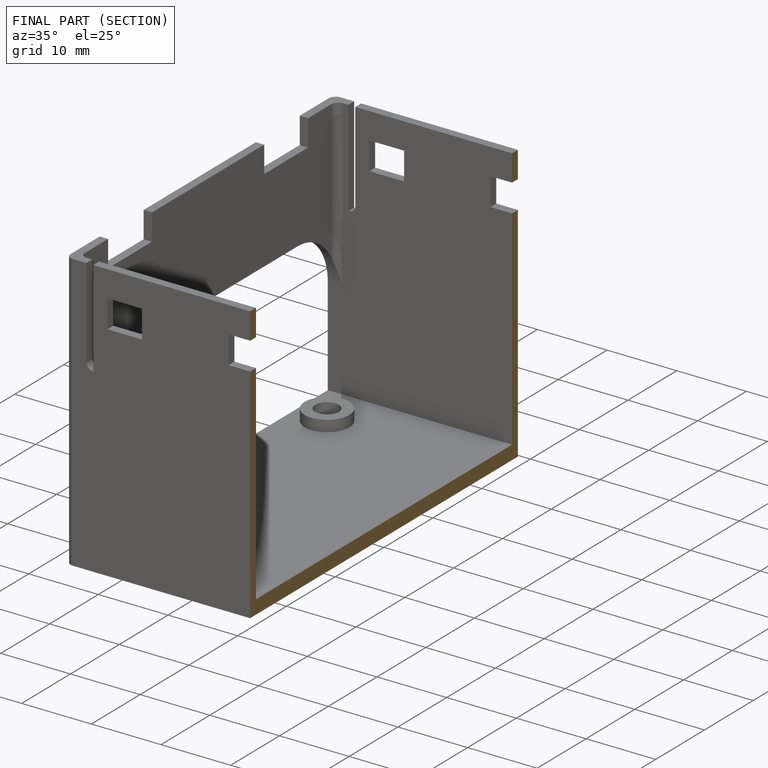
[diagram: finished part — half-section view (interior)]
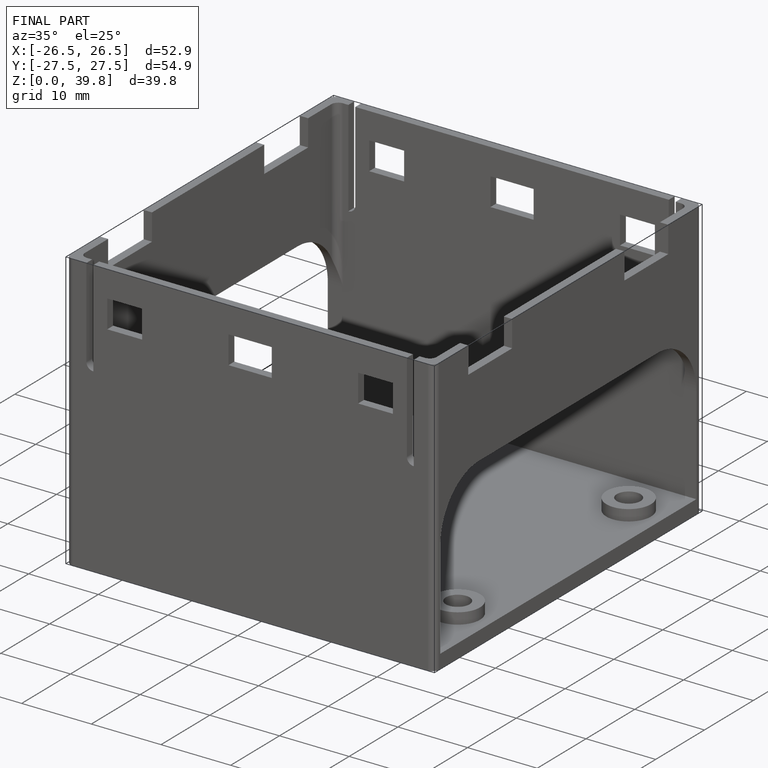
[diagram: finished part — iso view with bounding-box wireframe]
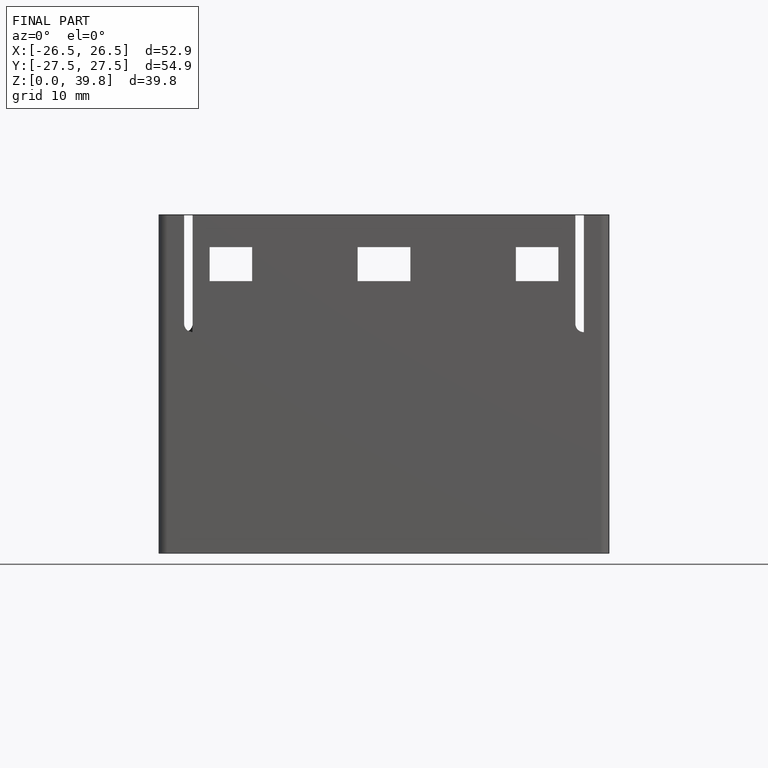
[diagram: finished part — front view with bounding-box wireframe]
